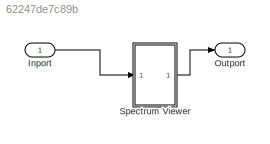
MODEL slx_62247de7c89b
KIND model
CONFIG AbsTol = auto
CONFIG EnableMultiTasking = on
CONFIG FixedStep = auto
CONFIG MaxStep = auto
CONFIG MinStep = auto
CONFIG RelTol = 1e-3
CONFIG SampleTimeConstraint = Unconstrained
CONFIG SolverName = ode45
CONFIG StartTime = 0.0
CONFIG StopTime = 10.0
BLOCK [Inport] Inport
BLOCK [Outport] Outport
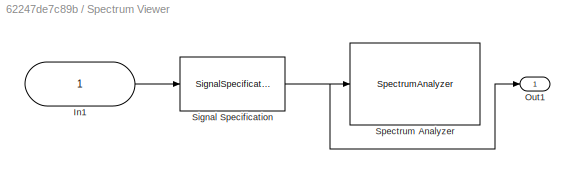
BLOCK [SubSystem] Spectrum Viewer
BLOCK [Inport] Spectrum Viewer/In1
BLOCK [Outport] Spectrum Viewer/Out1
BLOCK [SignalSpecification] Spectrum Viewer/Signal Specification
  SampleTime = 1/16e4
BLOCK [SpectrumAnalyzer] Spectrum Viewer/Spectrum Analyzer
  AllowFFTLengthLessThanSamplesPerUpdate = on
  AveragingMethod = Running
  AxesScaling = Manual
  DefaultConfigurationName = spbscopes.SpectrumAnalyzerBlockCfg
  FrequencyInputRBWFromPort = 0
  FrequencyInputRBWPort = 0
  FrequencyResolutionMethod = Window length
  FrequencySpan = Span and center frequency
  FrequencyVectorFromPort = 0
  FrequencyVectorPort = 0
  GraphicalSettings = {"GraphicalSettings":{"Style":{"BackgroundColor":[0.12941176470588237,0.12941176470588237,0.12941176470588237],"AxesColor":[0,0,0],"LabelsColor":[0.6862745098039216,0.6862745098039216,0.6862745098039216],"PreserveColors":false,"Visible":[true],"LineStyle":["-"],"LineWidth":[1.5],"BarWidth":[0.9],"LineColor":[[1,0.9098039215686274,0.39215686274509803]],"LineFaceAlpha":[1],"LineEdgeAlpha":[1],"Marke...<+945ch>
  IsFrequencyInputMode = 0
  Method = Welch
  OverlapPercent = 6.25
  ScopeFrameLocation = window
  ScopeSpecificationString = spbscopes.SpectrumAnalyzerBlockCfg('CurrentConfiguration', extmgr.ConfigurationSet(extmgr.Configuration('Core','General UI',true),extmgr.Configuration('Core','Source UI',true),extmgr.Configuration('Sources','WiredSimulink',true),extmgr.Configuration('Sources','SimulinkEvent',false),extmgr.Configuration('Sources','Simulink',false),extmgr.Configuration('Sources','File',false),extmgr.Configuration('S...<+2845ch>
  SelectedToolstripTab = spectrumAnalyzerToolstrip.measurementsTab
  Span = 160000
  SpectralAverages = 200
  StartFrequency = -80000
  StopFrequency = 80000
  WasSavedAsWebScope = on
  WindowPosition = [1155.000000,322.000000,800.000000,782.000000,]
  YLimits = [-242.61893069351197,133.84911814466022]
LINE Inport:1 -> Spectrum Viewer:1
LINE Spectrum Viewer/In1:1 -> Spectrum Viewer/Signal Specification:1
NET Spectrum Viewer/Signal Specification:1 -> Spectrum Viewer/Out1:1, Spectrum Viewer/Spectrum Analyzer:1
LINE Spectrum Viewer:1 -> Outport:1
note: NET lines group one-source signal fan-out (src -> all destinations, sorted); 1:1 wires keep LINE
